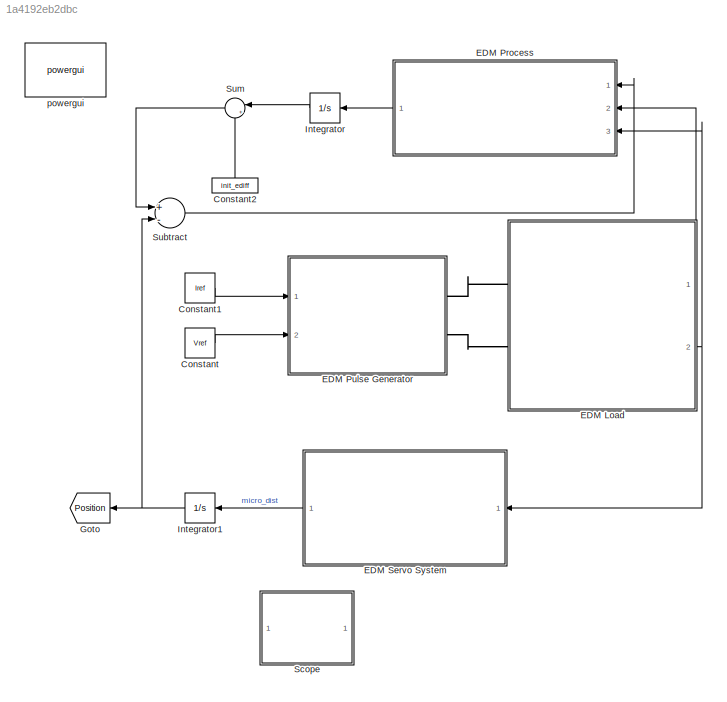
MODEL slx_1a4192eb2dbc
KIND model
CONFIG AbsTol = auto
CONFIG EnableMultiTasking = on
CONFIG FixedStep = auto
CONFIG MaxStep = 1e-6
CONFIG MinStep = 1e-7
CONFIG RelTol = 1e-3
CONFIG SampleTimeConstraint = Unconstrained
CONFIG Solver = ode23t
CONFIG SolverName = ode23t
CONFIG StartTime = 0.0
CONFIG StopTime = 2
BLOCK [Constant] Constant
  Value = Vref
BLOCK [Constant] Constant1
  Value = Iref
BLOCK [Constant] Constant2
  Value = init_ediff
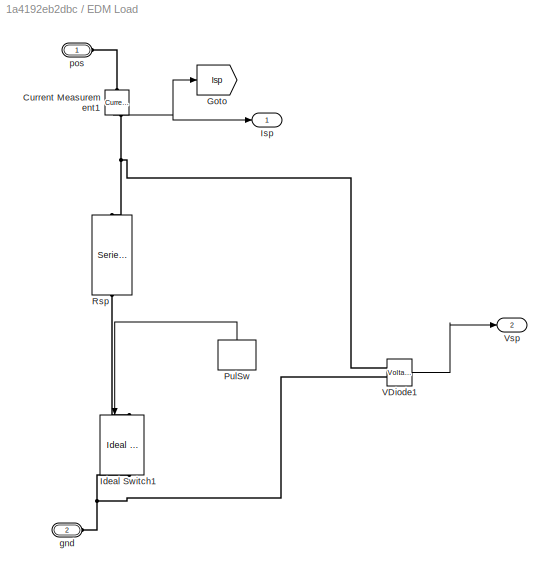
BLOCK [SubSystem] EDM Load 
  Ports = [0, 2, 0, 0, 0, 2]
  RequestExecContextInheritance = off
BLOCK [Reference] EDM Load /Current Measurement1  REF=powerlib/Measurements/Current Measurement
  Ports = [0, 1, 0, 0, 0, 1, 1]
  SourceBlock = powerlib/Measurements/Current Measurement
  SourceProductBaseCode = PS
  SourceProductName = Simscape Electrical
  SourceType = Current Measurement
  UserDataPersistent = on
BLOCK [Goto] EDM Load /Goto
  GotoTag = Isp
  TagVisibility = global
BLOCK [Reference] EDM Load /Ideal Switch1  REF=powerlib/Power
Electronics/Ideal Switch
  Ports = [1, 1, 0, 0, 0, 1, 1]
  SourceBlock = powerlib/Power\nElectronics/Ideal Switch
  SourceProductBaseCode = PS
  SourceProductName = Simscape Electrical
  SourceType = Ideal Switch
BLOCK [Outport] EDM Load /Isp
  IconDisplay = Port number
BLOCK [DiscretePulseGenerator] EDM Load /PulSw
  Period = Tmach
  PhaseDelay = Tign
  Ports = [0, 1]
  PulseType = Time based
  PulseWidth = Dm
BLOCK [Reference] EDM Load /Rsp  REF=powerlib/Elements/Series RLC Branch
  Ports = [0, 0, 0, 0, 0, 1, 1]
  SourceBlock = powerlib/Elements/Series RLC Branch
  SourceProductBaseCode = PS
  SourceProductName = Simscape Electrical
  SourceType = Series RLC Branch
BLOCK [Reference] EDM Load /VDiode1  REF=powerlib/Measurements/Voltage Measurement
  Ports = [0, 1, 0, 0, 0, 2]
  SourceBlock = powerlib/Measurements/Voltage Measurement
  SourceProductBaseCode = PS
  SourceProductName = Simscape Electrical
  SourceType = Voltage Measurement
BLOCK [Outport] EDM Load /Vsp
  IconDisplay = Port number
  Port = 2
BLOCK [PMIOPort] EDM Load /gnd
  Port = 2
  Side = Left
BLOCK [PMIOPort] EDM Load /pos
  Side = Left
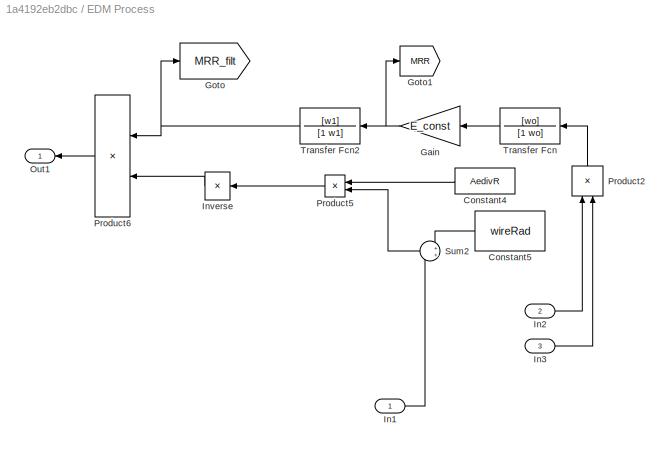
BLOCK [SubSystem] EDM Process
  Ports = [3, 1]
  RequestExecContextInheritance = off
BLOCK [Constant] EDM Process/Constant4
  Value = AedivR
BLOCK [Constant] EDM Process/Constant5
  Value = wireRad
BLOCK [Gain] EDM Process/Gain
  Gain = E_const
  OutDataTypeStr = Inherit: Inherit via internal rule
  ParamDataTypeStr = Inherit: Inherit via internal rule
  SaturateOnIntegerOverflow = off
BLOCK [Goto] EDM Process/Goto
  GotoTag = MRR_filt
  TagVisibility = global
BLOCK [Goto] EDM Process/Goto1
  GotoTag = MRR
  TagVisibility = global
BLOCK [Inport] EDM Process/In1
  IconDisplay = Port number
BLOCK [Inport] EDM Process/In2
  IconDisplay = Port number
  Port = 2
BLOCK [Inport] EDM Process/In3
  IconDisplay = Port number
  Port = 3
BLOCK [Product] EDM Process/Inverse 
  InputSameDT = off
  Inputs = 1
  OutDataTypeStr = Inherit: Inherit via internal rule
  Ports = [1, 1]
  RndMeth = Floor
  SaturateOnIntegerOverflow = off
BLOCK [Outport] EDM Process/Out1
  IconDisplay = Port number
BLOCK [Product] EDM Process/Product2
  InputSameDT = off
  OutDataTypeStr = Inherit: Inherit via internal rule
  Ports = [2, 1]
  RndMeth = Floor
  SaturateOnIntegerOverflow = off
BLOCK [Product] EDM Process/Product5
  InputSameDT = off
  OutDataTypeStr = Inherit: Inherit via internal rule
  Ports = [2, 1]
  RndMeth = Floor
  SaturateOnIntegerOverflow = off
BLOCK [Product] EDM Process/Product6
  InputSameDT = off
  OutDataTypeStr = Inherit: Inherit via internal rule
  Ports = [2, 1]
  RndMeth = Floor
  SaturateOnIntegerOverflow = off
BLOCK [Sum] EDM Process/Sum2
  IconShape = round
  InputSameDT = off
  OutDataTypeStr = Inherit: Inherit via internal rule
  Ports = [2, 1]
  SaturateOnIntegerOverflow = off
BLOCK [TransferFcn] EDM Process/Transfer Fcn
  Denominator = [1 wo]
  Numerator = [wo]
BLOCK [TransferFcn] EDM Process/Transfer Fcn2
  Denominator = [1 w1]
  Numerator = [w1]
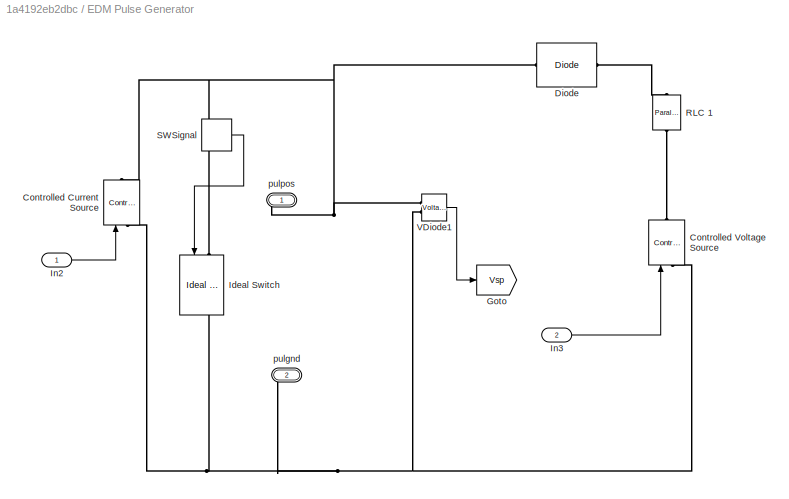
BLOCK [SubSystem] EDM Pulse Generator 
  Ports = [2, 0, 0, 0, 0, 0, 2]
  RequestExecContextInheritance = off
BLOCK [Reference] EDM Pulse Generator / RLC 1  REF=powerlib/Elements/Parallel RLC Branch
  AttributesFormatString = \n
  Ports = [0, 0, 0, 0, 0, 1, 1]
  SourceBlock = powerlib/Elements/Parallel RLC Branch
  SourceProductBaseCode = PS
  SourceProductName = Simscape Electrical
  SourceType = Parallel RLC Branch
BLOCK [Reference] EDM Pulse Generator /Controlled Current Source  REF=powerlib/Electrical
Sources/Controlled Current Source
  Ports = [1, 0, 0, 0, 0, 1, 1]
  SourceBlock = powerlib/Electrical\nSources/Controlled Current Source
  SourceProductBaseCode = PS
  SourceProductName = Simscape Electrical
  SourceType = Controlled Current Source
BLOCK [Reference] EDM Pulse Generator /Controlled Voltage Source  REF=powerlib/Electrical
Sources/Controlled Voltage Source
  Ports = [1, 0, 0, 0, 0, 1, 1]
  SourceBlock = powerlib/Electrical\nSources/Controlled Voltage Source
  SourceProductBaseCode = PS
  SourceProductName = Simscape Electrical
  SourceType = Controlled Voltage Source
BLOCK [Reference] EDM Pulse Generator /Diode  REF=powerlib/Power
Electronics/Diode
  Ports = [0, 0, 0, 0, 0, 1, 1]
  SourceBlock = powerlib/Power\nElectronics/Diode
  SourceProductBaseCode = PS
  SourceProductName = Simscape Electrical
  SourceType = Diode
BLOCK [Goto] EDM Pulse Generator /Goto
  GotoTag = Vsp
  TagVisibility = global
BLOCK [Reference] EDM Pulse Generator /Ideal Switch  REF=powerlib/Power
Electronics/Ideal Switch
  Ports = [1, 1, 0, 0, 0, 1, 1]
  SourceBlock = powerlib/Power\nElectronics/Ideal Switch
  SourceProductBaseCode = PS
  SourceProductName = Simscape Electrical
  SourceType = Ideal Switch
BLOCK [Inport] EDM Pulse Generator /In2
  IconDisplay = Port number
BLOCK [Inport] EDM Pulse Generator /In3
  IconDisplay = Port number
  Port = 2
BLOCK [DiscretePulseGenerator] EDM Pulse Generator /SWSignal 
  Period = Tmach
  PhaseDelay = Td
  Ports = [0, 1]
  PulseType = Time based
  PulseWidth = 100-(Dm+Dign)
BLOCK [Reference] EDM Pulse Generator /VDiode1  REF=powerlib/Measurements/Voltage Measurement
  Ports = [0, 1, 0, 0, 0, 2]
  SourceBlock = powerlib/Measurements/Voltage Measurement
  SourceProductBaseCode = PS
  SourceProductName = Simscape Electrical
  SourceType = Voltage Measurement
BLOCK [PMIOPort] EDM Pulse Generator /pulgnd
  Port = 2
  Side = Right
BLOCK [PMIOPort] EDM Pulse Generator /pulpos
  Side = Right
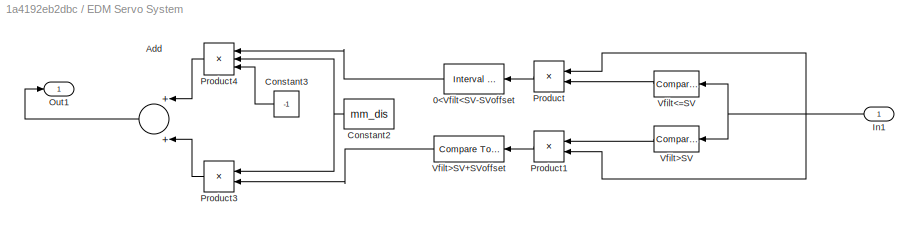
BLOCK [SubSystem] EDM Servo System
  Ports = [1, 1]
  RequestExecContextInheritance = off
BLOCK [Reference] EDM Servo System/0<Vfilt<SV-SVoffset  REF=simulink/Logic and Bit
Operations/Interval Test
  Ports = [1, 1]
  SourceBlock = simulink/Logic and Bit\nOperations/Interval Test
  SourceProductBaseCode = SL
  SourceProductName = Simulink
  SourceType = Interval Test
BLOCK [Sum] EDM Servo System/Add
  InputSameDT = off
  OutDataTypeStr = Inherit: Inherit via internal rule
  Ports = [2, 1]
  SaturateOnIntegerOverflow = off
BLOCK [Constant] EDM Servo System/Constant2
  Value = mm_dis
BLOCK [Constant] EDM Servo System/Constant3
  Value = -1
BLOCK [Inport] EDM Servo System/In1
  IconDisplay = Port number
BLOCK [Outport] EDM Servo System/Out1
  IconDisplay = Port number
BLOCK [Product] EDM Servo System/Product
  InputSameDT = off
  OutDataTypeStr = Inherit: Inherit via internal rule
  Ports = [2, 1]
  RndMeth = Floor
  SaturateOnIntegerOverflow = off
BLOCK [Product] EDM Servo System/Product1
  InputSameDT = off
  OutDataTypeStr = Inherit: Inherit via internal rule
  Ports = [2, 1]
  RndMeth = Floor
  SaturateOnIntegerOverflow = off
BLOCK [Product] EDM Servo System/Product3
  InputSameDT = off
  OutDataTypeStr = Inherit: Inherit via internal rule
  Ports = [2, 1]
  RndMeth = Floor
  SaturateOnIntegerOverflow = off
BLOCK [Product] EDM Servo System/Product4
  InputSameDT = off
  Inputs = 3
  OutDataTypeStr = Inherit: Inherit via internal rule
  Ports = [3, 1]
  RndMeth = Floor
  SaturateOnIntegerOverflow = off
BLOCK [Reference] EDM Servo System/Vfilt<=SV   REF=simulink/Logic and Bit
Operations/Compare
To Constant
  Ports = [1, 1]
  SourceBlock = simulink/Logic and Bit\nOperations/Compare\nTo Constant
  SourceProductBaseCode = SL
  SourceProductName = Simulink
  SourceType = Compare To Constant
BLOCK [Reference] EDM Servo System/Vfilt>SV   REF=simulink/Logic and Bit
Operations/Compare
To Constant
  Ports = [1, 1]
  SourceBlock = simulink/Logic and Bit\nOperations/Compare\nTo Constant
  SourceProductBaseCode = SL
  SourceProductName = Simulink
  SourceType = Compare To Constant
BLOCK [Reference] EDM Servo System/Vfilt>SV+SVoffset   REF=simulink/Logic and Bit
Operations/Compare
To Constant
  Ports = [1, 1]
  SourceBlock = simulink/Logic and Bit\nOperations/Compare\nTo Constant
  SourceProductBaseCode = SL
  SourceProductName = Simulink
  SourceType = Compare To Constant
BLOCK [Goto] Goto
  GotoTag = Position
  TagVisibility = global
BLOCK [Integrator] Integrator
  Ports = [1, 1]
BLOCK [Integrator] Integrator1
  Ports = [1, 1]
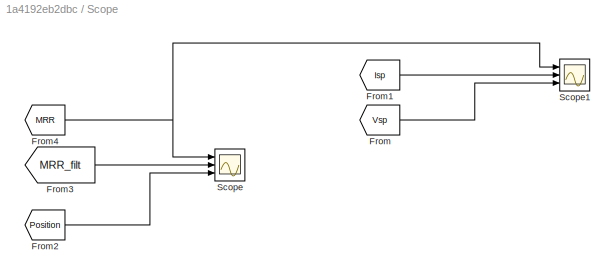
BLOCK [SubSystem] Scope 
  Ports = []
  RequestExecContextInheritance = off
BLOCK [From] Scope /From
  GotoTag = Vsp
  TagVisibility = global
BLOCK [From] Scope /From1
  GotoTag = Isp
  TagVisibility = global
BLOCK [From] Scope /From2
  GotoTag = Position
  TagVisibility = global
BLOCK [From] Scope /From3
  GotoTag = MRR_filt
  TagVisibility = global
BLOCK [From] Scope /From4
  GotoTag = MRR
  TagVisibility = global
BLOCK [Scope] Scope /Scope
  Floating = off
  NumInputPorts = 3
  Ports = [3]
  ScopeSpecificationString = Simulink.scopes.TimeScopeBlockCfg('CurrentConfiguration', extmgr.ConfigurationSet(extmgr.Configuration('Core','General UI',true,'FigureColor',[1 1 1],'DisplayFullSourceName',true),extmgr.Configuration('Core','Source UI',true),extmgr.Configuration('Sources','WiredSimulink',true),extmgr.Configuration('Visuals','Time Domain',true,'PlotType','Line','SerializedDisplays',{struct('MinYLimReal','-0.000000...<+3131ch>
BLOCK [Scope] Scope /Scope1
  Floating = off
  NumInputPorts = 3
  Ports = [3]
  ScopeSpecificationString = Simulink.scopes.TimeScopeBlockCfg('CurrentConfiguration', extmgr.ConfigurationSet(extmgr.Configuration('Core','General UI',true,'FigureColor',[1 1 1],'DisplayFullSourceName',true),extmgr.Configuration('Core','Source UI',true),extmgr.Configuration('Sources','WiredSimulink',true,'DataLoggingVariableName','ScopeData1'),extmgr.Configuration('Visuals','Time Domain',true,'SerializedDisplays',{struct('Mi...<+3182ch>
BLOCK [Sum] Subtract
  InputSameDT = off
  Inputs = +-
  OutDataTypeStr = Inherit: Inherit via internal rule
  Ports = [2, 1]
  SaturateOnIntegerOverflow = off
BLOCK [Sum] Sum
  IconShape = round
  InputSameDT = off
  Inputs = |++
  OutDataTypeStr = Inherit: Inherit via internal rule
  Ports = [2, 1]
  SaturateOnIntegerOverflow = off
BLOCK [Reference] powergui  REF=powerlib/powergui
  Ports = []
  Priority = 1
  SourceBlock = powerlib/powergui
  SourceProductBaseCode = PS
  SourceProductName = Simscape Electrical
  SourceType = PSB option menu block
LINE Constant1:1 -> EDM Pulse Generator :1
LINE Constant2:1 -> Sum:2
LINE Constant:1 -> EDM Pulse Generator :2
NET EDM Load /Current Measurement1:1 -> EDM Load /Goto:1, EDM Load /Isp:1
LINE EDM Load /PulSw:1 -> EDM Load /Ideal Switch1:1
LINE EDM Load /VDiode1:1 -> EDM Load /Vsp:1
LINE EDM Load :1 -> EDM Process:2
NET EDM Load :2 -> EDM Process:3, EDM Servo System:1
LINE EDM Process/Constant4:1 -> EDM Process/Product5:1
LINE EDM Process/Constant5:1 -> EDM Process/Sum2:1
NET EDM Process/Gain:1 -> EDM Process/Goto1:1, EDM Process/Transfer Fcn2:1
LINE EDM Process/In1:1 -> EDM Process/Sum2:2
LINE EDM Process/In2:1 -> EDM Process/Product2:1
LINE EDM Process/In3:1 -> EDM Process/Product2:2
LINE EDM Process/Inverse :1 -> EDM Process/Product6:2
LINE EDM Process/Product2:1 -> EDM Process/Transfer Fcn:1
LINE EDM Process/Product5:1 -> EDM Process/Inverse :1
LINE EDM Process/Product6:1 -> EDM Process/Out1:1
LINE EDM Process/Sum2:1 -> EDM Process/Product5:2
NET EDM Process/Transfer Fcn2:1 -> EDM Process/Goto:1, EDM Process/Product6:1
LINE EDM Process/Transfer Fcn:1 -> EDM Process/Gain:1
LINE EDM Process:1 -> Integrator:1
LINE EDM Pulse Generator /In2:1 -> EDM Pulse Generator /Controlled Current Source:1
LINE EDM Pulse Generator /In3:1 -> EDM Pulse Generator /Controlled Voltage Source:1
LINE EDM Pulse Generator /SWSignal :1 -> EDM Pulse Generator /Ideal Switch:1
LINE EDM Pulse Generator /VDiode1:1 -> EDM Pulse Generator /Goto:1
LINE EDM Servo System/0<Vfilt<SV-SVoffset:1 -> EDM Servo System/Product4:1
LINE EDM Servo System/Add:1 -> EDM Servo System/Out1:1
NET EDM Servo System/Constant2:1 -> EDM Servo System/Product3:1, EDM Servo System/Product4:2
LINE EDM Servo System/Constant3:1 -> EDM Servo System/Product4:3
NET EDM Servo System/In1:1 -> EDM Servo System/Product1:2, EDM Servo System/Product:1, EDM Servo System/Vfilt<=SV :1, EDM Servo System/Vfilt>SV :1
LINE EDM Servo System/Product1:1 -> EDM Servo System/Vfilt>SV+SVoffset :1
LINE EDM Servo System/Product3:1 -> EDM Servo System/Add:2
LINE EDM Servo System/Product4:1 -> EDM Servo System/Add:1
LINE EDM Servo System/Product:1 -> EDM Servo System/0<Vfilt<SV-SVoffset:1
LINE EDM Servo System/Vfilt<=SV :1 -> EDM Servo System/Product:2
LINE EDM Servo System/Vfilt>SV :1 -> EDM Servo System/Product1:1
LINE EDM Servo System/Vfilt>SV+SVoffset :1 -> EDM Servo System/Product3:2
LINE EDM Servo System:1 -> Integrator1:1
NET Integrator1:1 -> Goto:1, Subtract:2
LINE Integrator:1 -> Sum:1
LINE Scope /From1:1 -> Scope /Scope1:2
LINE Scope /From2:1 -> Scope /Scope:3
LINE Scope /From3:1 -> Scope /Scope:2
NET Scope /From4:1 -> Scope /Scope1:1, Scope /Scope:1
LINE Scope /From:1 -> Scope /Scope1:3
LINE Subtract:1 -> EDM Process:1
LINE Sum:1 -> Subtract:1
PLINE EDM Load /Current Measurement1:LConn1 -- EDM Load /pos:RConn1
PNET net1: EDM Load /Current Measurement1:RConn1 -- EDM Load /Rsp:LConn1 -- EDM Load /VDiode1:LConn1
PLINE EDM Load /Ideal Switch1:LConn1 -- EDM Load /Rsp:RConn1
PNET net2: EDM Load /Ideal Switch1:RConn1 -- EDM Load /VDiode1:LConn2 -- EDM Load /gnd:RConn1
PLINE EDM Load :LConn1 -- EDM Pulse Generator :RConn1
PLINE EDM Load :LConn2 -- EDM Pulse Generator :RConn2
PLINE EDM Pulse Generator / RLC 1:LConn1 -- EDM Pulse Generator /Diode:RConn1
PLINE EDM Pulse Generator / RLC 1:RConn1 -- EDM Pulse Generator /Controlled Voltage Source:RConn1
PNET net3: EDM Pulse Generator /Controlled Current Source:LConn1 -- EDM Pulse Generator /Controlled Voltage Source:LConn1 -- EDM Pulse Generator /Ideal Switch:RConn1 -- EDM Pulse Generator /VDiode1:LConn2 -- EDM Pulse Generator /pulgnd:RConn1
PNET net4: EDM Pulse Generator /Controlled Current Source:RConn1 -- EDM Pulse Generator /Diode:LConn1 -- EDM Pulse Generator /Ideal Switch:LConn1 -- EDM Pulse Generator /VDiode1:LConn1 -- EDM Pulse Generator /pulpos:RConn1
note: NET lines group one-source signal fan-out (src -> all destinations, sorted); 1:1 wires keep LINE; PNET lines group multi-terminal physical nets as a canonical sorted terminal list (undirected conserving connections); 2-terminal nets keep the pairwise PLINE form
